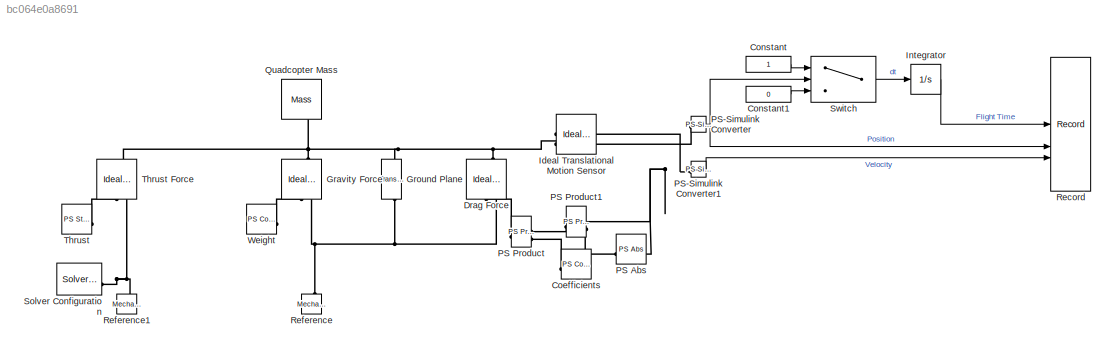
MODEL slx_bc064e0a8691
KIND model
CONFIG AbsTol = auto
CONFIG EnableMultiTasking = off
CONFIG FixedStep = auto
CONFIG MaxStep = auto
CONFIG MinStep = auto
CONFIG RelTol = 1e-3
CONFIG SampleTimeConstraint = Unconstrained
CONFIG SolverName = VariableStepAuto
CONFIG StartTime = 0.0
CONFIG StopTime = 30
BLOCK [Reference] Coefficients  REF=fl_lib/Physical Signals/Sources/PS Constant
  SourceBlock = fl_lib/Physical Signals/Sources/PS Constant
  SourceType = PS Constant
BLOCK [Constant] Constant
BLOCK [Constant] Constant1
  Value = 0
BLOCK [Reference] Drag Force  REF=fl_lib/Mechanical/Mechanical Sources/Ideal Force Source
  NameLocation = right
  SourceBlock = fl_lib/Mechanical/Mechanical Sources/Ideal Force Source
  SourceType = Ideal Force Source
BLOCK [Reference] Gravity Force  REF=fl_lib/Mechanical/Mechanical Sources/Ideal Force Source
  NameLocation = right
  SourceBlock = fl_lib/Mechanical/Mechanical Sources/Ideal Force Source
  SourceType = Ideal Force Source
BLOCK [Reference] Ground Plane  REF=fl_lib/Mechanical/Translational
Elements/Translational Hard
Stop
  NameLocation = right
  SourceBlock = fl_lib/Mechanical/Translational\nElements/Translational Hard\nStop
  SourceType = Translational Hard\nStop
BLOCK [Reference] Ideal Translational Motion Sensor  REF=fl_lib/Mechanical/Mechanical Sensors/Ideal Translational
Motion Sensor
  NameLocation = top
  SourceBlock = fl_lib/Mechanical/Mechanical Sensors/Ideal Translational\nMotion Sensor
  SourceType = Ideal Translational\nMotion Sensor
BLOCK [Integrator] Integrator
BLOCK [Reference] PS Abs  REF=fl_lib/Physical Signals/Nonlinear Operators/PS Abs
  SourceBlock = fl_lib/Physical Signals/Nonlinear Operators/PS Abs
  SourceType = PS Abs
BLOCK [Reference] PS Product  REF=fl_lib/Physical Signals/Functions/PS Product
  SourceBlock = fl_lib/Physical Signals/Functions/PS Product
  SourceType = PS Product
BLOCK [Reference] PS Product1  REF=fl_lib/Physical Signals/Functions/PS Product
  SourceBlock = fl_lib/Physical Signals/Functions/PS Product
  SourceType = PS Product
BLOCK [Reference] PS-Simulink Converter  REF=nesl_utility/PS-Simulink
Converter
  SourceBlock = nesl_utility/PS-Simulink\nConverter
  SourceType = PS-Simulink\nConverter
BLOCK [Reference] PS-Simulink Converter1  REF=nesl_utility/PS-Simulink
Converter
  SourceBlock = nesl_utility/PS-Simulink\nConverter
  SourceType = PS-Simulink\nConverter
BLOCK [Reference] Quadcopter Mass  REF=fl_lib/Mechanical/Translational
Elements/Mass
  NameLocation = left
  SourceBlock = fl_lib/Mechanical/Translational\nElements/Mass
  SourceType = Mass
BLOCK [Record] Record
  FileSettingsInternal = {"entries":[{"content":{"excelSettings":{"content":{},"type":"Streamout.ExcelSettings"}},"type":"Streamout.FileSettingStorage","uuid":""}],"packageUris":["http:\/\/schema.mathworks.com\/mf0\/streamout_blocks\/R2020a"],"version":"1.0"}
  SignalsInternal = {"entries":[{"content":{"signals":[{"content":{"blockPath":[],"dimensions":[1,1],"domain":"","lineColor":"#22b573","plots":[1],"port":1,"signalID":247,"signalName":"Flight Time"},"type":"RecordBlkView.Signal","uuid":""},{"content":{"blockPath":[],"dimensions":[1,1],"domain":"","lineColor":"#0072bd","plots":[1],"port":2,"signalID":250,"signalName":"Position"},"type":"RecordBlkView.Signal","uuid":""...<+329ch>
  VisualizationBindings = {"sparklinesplugin":{"info":[{"bindingParametersList":[],"subplotID":1}]}}
BLOCK [Reference] Reference  REF=fl_lib/Mechanical/Translational
Elements/Mechanical
Translational
Reference
  NameLocation = right
  SourceBlock = fl_lib/Mechanical/Translational\nElements/Mechanical\nTranslational\nReference
  SourceType = Mechanical\nTranslational\nReference
BLOCK [Reference] Reference1  REF=fl_lib/Mechanical/Translational
Elements/Mechanical
Translational
Reference
  NameLocation = right
  SourceBlock = fl_lib/Mechanical/Translational\nElements/Mechanical\nTranslational\nReference
  SourceType = Mechanical\nTranslational\nReference
BLOCK [Reference] Solver Configuration  REF=nesl_utility/Solver
Configuration
  SourceBlock = nesl_utility/Solver\nConfiguration
  SourceType = Solver\nConfiguration
BLOCK [Switch] Switch
  Criteria = u2 > Threshold
  InputSameDT = off
  SaturateOnIntegerOverflow = off
  Threshold = 0.01
BLOCK [Reference] Thrust  REF=fl_lib/Physical Signals/Sources/PS Step
  SourceBlock = fl_lib/Physical Signals/Sources/PS Step
  SourceType = PS Step
BLOCK [Reference] Thrust Force  REF=fl_lib/Mechanical/Mechanical Sources/Ideal Force Source
  NameLocation = right
  SourceBlock = fl_lib/Mechanical/Mechanical Sources/Ideal Force Source
  SourceType = Ideal Force Source
BLOCK [Reference] Weight  REF=fl_lib/Physical Signals/Sources/PS Constant
  SourceBlock = fl_lib/Physical Signals/Sources/PS Constant
  SourceType = PS Constant
LINE Constant1:1 -> Switch:3
LINE Constant:1 -> Switch:1
LINE Integrator:1 -> Record:1
LINE PS-Simulink Converter1:1 -> Record:3
NET PS-Simulink Converter:1 -> Record:2, Switch:2
LINE Switch:1 -> Integrator:1
PLINE Coefficients:RConn1 -- PS Product:LConn2
PNET net1: Drag Force:LConn1 -- Gravity Force:LConn1 -- Ground Plane:LConn1 -- Ideal Translational Motion Sensor:LConn1 -- Quadcopter Mass:LConn1 -- Thrust Force:LConn1
PLINE Drag Force:RConn1 -- PS Product:RConn1
PNET net2: Drag Force:RConn2 -- Gravity Force:RConn2 -- Ground Plane:RConn1 -- Reference:LConn1
PLINE Gravity Force:RConn1 -- Weight:RConn1
PNET net3: Ideal Translational Motion Sensor:RConn1 -- PS Abs:LConn1 -- PS Product1:LConn1 -- PS-Simulink Converter1:LConn1
PLINE Ideal Translational Motion Sensor:RConn2 -- PS-Simulink Converter:LConn1
PLINE PS Abs:RConn1 -- PS Product1:LConn2
PLINE PS Product1:RConn1 -- PS Product:LConn1
PNET net4: Reference1:LConn1 -- Solver Configuration:RConn1 -- Thrust Force:RConn2
PLINE Thrust Force:RConn1 -- Thrust:RConn1
note: NET lines group one-source signal fan-out (src -> all destinations, sorted); 1:1 wires keep LINE; PNET lines group multi-terminal physical nets as a canonical sorted terminal list (undirected conserving connections); 2-terminal nets keep the pairwise PLINE form
